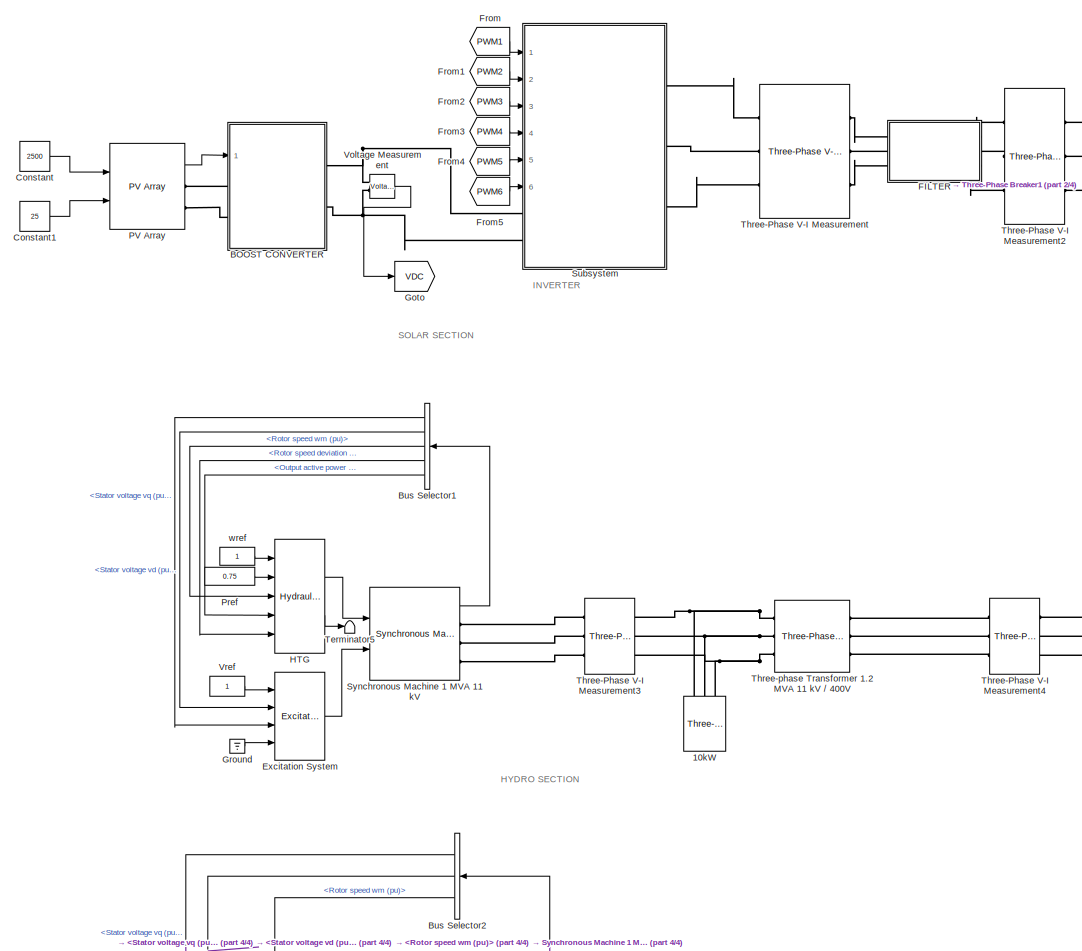
[diagram: root canvas - part 1/4, middle left region]
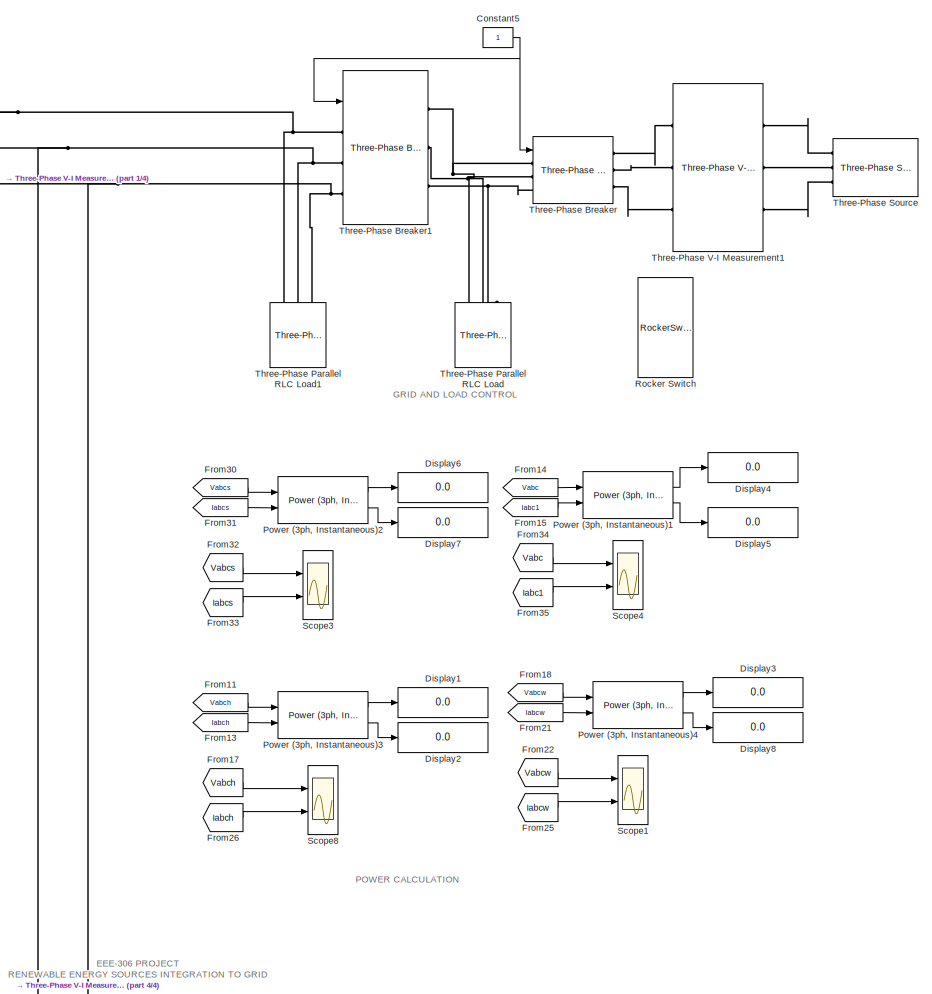
[diagram: root canvas - part 2/4, center side, full height]
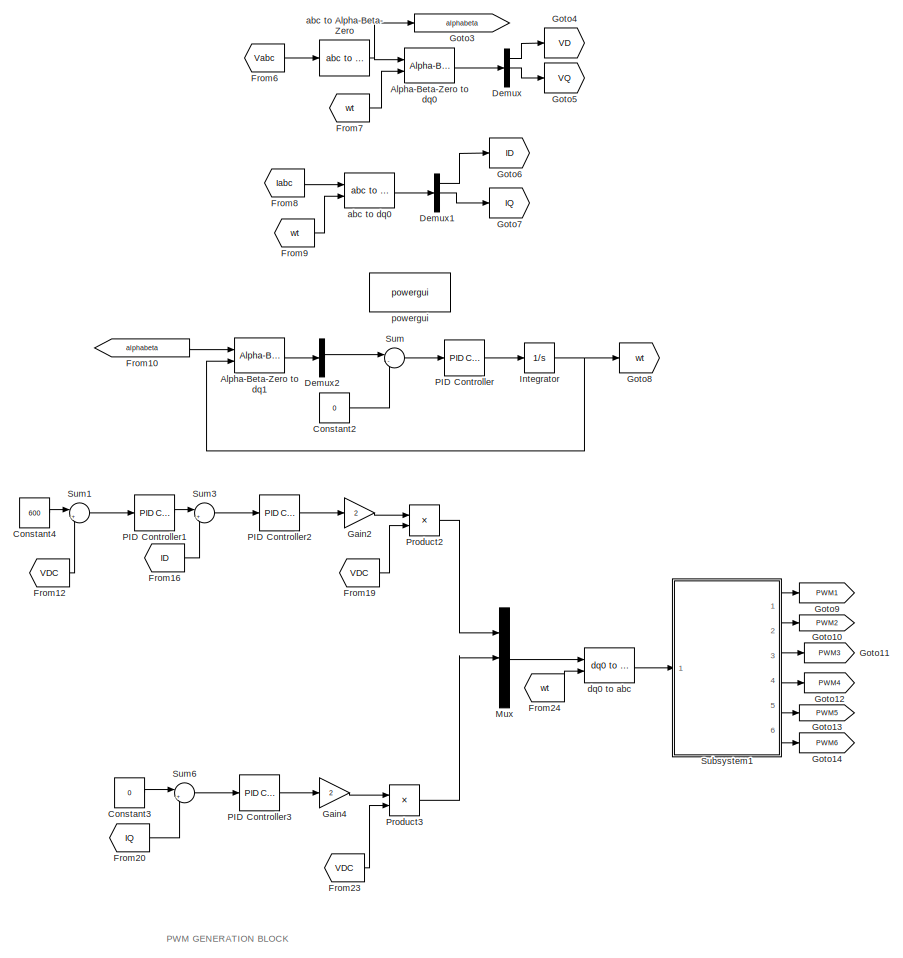
[diagram: root canvas - part 3/4, middle right region]
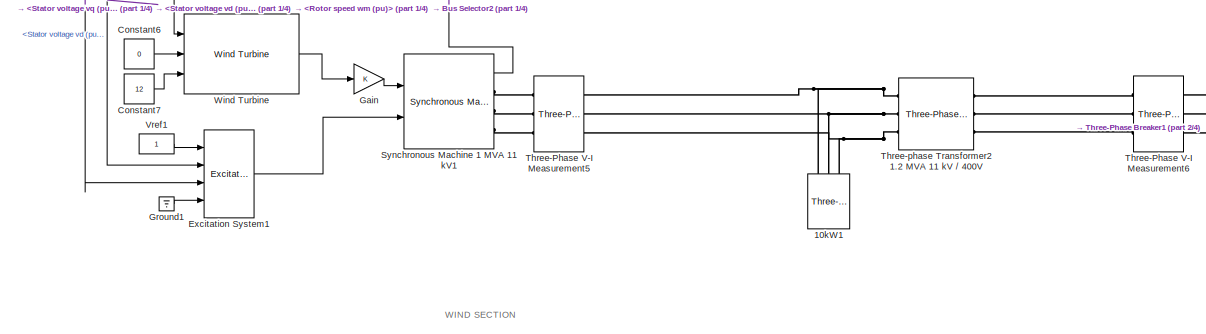
[diagram: root canvas - part 4/4, bottom left region]
MODEL slx_8a37fa41833d
KIND model
CONFIG AbsTol = auto
CONFIG EnableMultiTasking = off
CONFIG FixedStep = auto
CONFIG MaxStep = auto
CONFIG MinStep = auto
CONFIG RelTol = 1e-3
CONFIG SampleTimeConstraint = Unconstrained
CONFIG SolverName = ode23t
CONFIG StartTime = 0.0
CONFIG StopTime = 10.0
BLOCK [Reference] 10kW  REF=spsThreePhaseParallelRLCLoadLib/Three-Phase
Parallel RLC Load
  AttributesFormatString = \n
  NameLocation = left
  Ports = [0, 0, 0, 0, 0, 3]
  SourceBlock = spsThreePhaseParallelRLCLoadLib/Three-Phase\nParallel RLC Load
  SourceProductBaseCode = PS
  SourceType = Three-Phase Parallel RLC Load
BLOCK [Reference] 10kW1  REF=spsThreePhaseParallelRLCLoadLib/Three-Phase
Parallel RLC Load
  AttributesFormatString = \n
  NameLocation = left
  Ports = [0, 0, 0, 0, 0, 3]
  SourceBlock = spsThreePhaseParallelRLCLoadLib/Three-Phase\nParallel RLC Load
  SourceProductBaseCode = PS
  SourceType = Three-Phase Parallel RLC Load
BLOCK [Reference] Alpha-Beta-Zero to dq0  REF=spsAlphaBetaZerotodq0Lib/Alpha-Beta-Zero
to dq0
  Ports = [2, 1]
  SourceBlock = spsAlphaBetaZerotodq0Lib/Alpha-Beta-Zero\nto dq0
  SourceProductBaseCode = PS
  SourceType = Alpha-Beta-Zero to dq0 Transformation
BLOCK [Reference] Alpha-Beta-Zero to dq1  REF=spsAlphaBetaZerotodq0Lib/Alpha-Beta-Zero
to dq0
  Ports = [2, 1]
  SourceBlock = spsAlphaBetaZerotodq0Lib/Alpha-Beta-Zero\nto dq0
  SourceProductBaseCode = PS
  SourceType = Alpha-Beta-Zero to dq0 Transformation
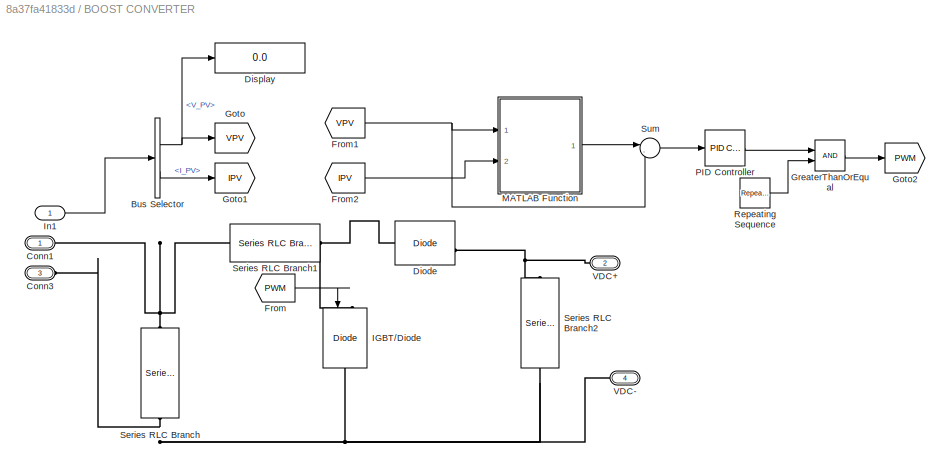
BLOCK [SubSystem] BOOST CONVERTER
  Ports = [1, 0, 0, 0, 0, 2, 2]
  RequestExecContextInheritance = off
BLOCK [BusSelector] BOOST CONVERTER/Bus Selector
  OutputSignals = V_PV,I_PV
  Ports = [1, 2]
BLOCK [PMIOPort] BOOST CONVERTER/Conn1
  Side = Left
BLOCK [PMIOPort] BOOST CONVERTER/Conn3
  Port = 3
  Side = Left
BLOCK [Reference] BOOST CONVERTER/Diode  REF=spsDiodeLib/Diode
  Ports = [0, 1, 0, 0, 0, 1, 1]
  SourceBlock = spsDiodeLib/Diode
  SourceProductBaseCode = PS
  SourceType = Diode
BLOCK [Display] BOOST CONVERTER/Display
  Decimation = 1
  Ports = [1]
BLOCK [From] BOOST CONVERTER/From
  GotoTag = PWM
BLOCK [From] BOOST CONVERTER/From1
  GotoTag = VPV
BLOCK [From] BOOST CONVERTER/From2
  GotoTag = IPV
BLOCK [Goto] BOOST CONVERTER/Goto
  GotoTag = VPV
BLOCK [Goto] BOOST CONVERTER/Goto1
  GotoTag = IPV
BLOCK [Goto] BOOST CONVERTER/Goto2
  GotoTag = PWM
BLOCK [RelationalOperator] BOOST CONVERTER/GreaterThanOrEqual
  InputSameDT = off
  OutDataTypeStr = boolean
  Ports = [2, 1]
  RndMeth = Simplest
BLOCK [Reference] BOOST CONVERTER/IGBT//Diode  REF=spsIGBTDiodeLib/IGBT//Diode
  NameLocation = left
  Ports = [1, 0, 0, 0, 0, 1, 1]
  SourceBlock = spsIGBTDiodeLib/IGBT//Diode
  SourceProductBaseCode = PS
  SourceType = IGBT/Diode
BLOCK [Inport] BOOST CONVERTER/In1
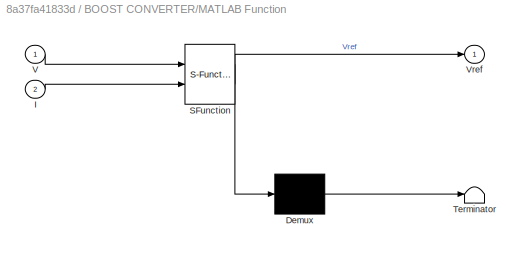
BLOCK [SubSystem] BOOST CONVERTER/MATLAB Function
  ErrorFcn = Stateflow.Translate.translate
  PermitHierarchicalResolution = ExplicitOnly
  Ports = [2, 1]
  RequestExecContextInheritance = off
  SFBlockType = MATLAB Function
  TreatAsAtomicUnit = on
BLOCK [Demux] BOOST CONVERTER/MATLAB Function/ Demux 
  Outputs = 1
  Ports = [1, 1]
BLOCK [S-Function] BOOST CONVERTER/MATLAB Function/ SFunction 
  EnableBusSupport = on
  FunctionName = sf_sfun
  PortCounts = [2 2]
  Ports = [2, 2]
  SFcnIsStateOwnerBlock = off
  SFunctionDeploymentMode = off
  Tag = Stateflow S-Function 2
BLOCK [Terminator] BOOST CONVERTER/MATLAB Function/ Terminator 
BLOCK [Inport] BOOST CONVERTER/MATLAB Function/I
  Port = 2
BLOCK [Inport] BOOST CONVERTER/MATLAB Function/V
BLOCK [Outport] BOOST CONVERTER/MATLAB Function/Vref
BLOCK [Reference] BOOST CONVERTER/PID Controller  REF=pid_lib/PID Controller
  Ports = [1, 1]
  SourceBlock = pid_lib/PID Controller
  SourceProductBaseCode = SL
  SourceType = PID 1dof
BLOCK [Reference] BOOST CONVERTER/Repeating Sequence  REF=simulink/Sources/Repeating
Sequence
  Ports = [0, 1]
  SourceBlock = simulink/Sources/Repeating\nSequence
  SourceProductBaseCode = SL
  SourceType = Repeating table
BLOCK [Reference] BOOST CONVERTER/Series RLC Branch  REF=spsSeriesRLCBranchLib/Series RLC Branch
  NameLocation = left
  Ports = [0, 0, 0, 0, 0, 1, 1]
  SourceBlock = spsSeriesRLCBranchLib/Series RLC Branch
  SourceProductBaseCode = PS
  SourceType = Series RLC Branch
BLOCK [Reference] BOOST CONVERTER/Series RLC Branch1  REF=spsSeriesRLCBranchLib/Series RLC Branch
  NameLocation = top
  Ports = [0, 0, 0, 0, 0, 1, 1]
  SourceBlock = spsSeriesRLCBranchLib/Series RLC Branch
  SourceProductBaseCode = PS
  SourceType = Series RLC Branch
BLOCK [Reference] BOOST CONVERTER/Series RLC Branch2  REF=spsSeriesRLCBranchLib/Series RLC Branch
  NameLocation = left
  Ports = [0, 0, 0, 0, 0, 1, 1]
  SourceBlock = spsSeriesRLCBranchLib/Series RLC Branch
  SourceProductBaseCode = PS
  SourceType = Series RLC Branch
BLOCK [Sum] BOOST CONVERTER/Sum
  Inputs = |-+
  Ports = [2, 1]
BLOCK [PMIOPort] BOOST CONVERTER/VDC+
  NameLocation = top
  Port = 2
  Side = Right
BLOCK [PMIOPort] BOOST CONVERTER/VDC-
  NameLocation = top
  Port = 4
  Side = Right
BLOCK [BusSelector] Bus Selector1
  NameLocation = top
  OutputSignals = dq0 components.Stator voltage  vq (pu),dq0 components.Stator voltage  vd (pu),Mechanical.Rotor speed  wm  (pu),Mechanical.Rotor speed deviation  dw (pu),Output active power   Peo (pu)
  Ports = [1, 5]
BLOCK [BusSelector] Bus Selector2
  NameLocation = top
  OutputSignals = dq0 components.Stator voltage  vq (pu),dq0 components.Stator voltage  vd (pu),Mechanical.Rotor speed  wm  (pu)
  Ports = [1, 3]
BLOCK [Constant] Constant
  Value = 2500
BLOCK [Constant] Constant1
  Value = 25
BLOCK [Constant] Constant2
  Value = 0
BLOCK [Constant] Constant3
  Value = 0
BLOCK [Constant] Constant4
  Value = 600
BLOCK [Constant] Constant5
BLOCK [Constant] Constant6
  Value = 0
BLOCK [Constant] Constant7
  Value = 12
BLOCK [Demux] Demux
  Outputs = 3
  Ports = [1, 3]
BLOCK [Demux] Demux1
  Outputs = 3
  Ports = [1, 3]
BLOCK [Demux] Demux2
  Outputs = 3
  Ports = [1, 3]
BLOCK [Display] Display1
  Decimation = 1
  Ports = [1]
BLOCK [Display] Display2
  Decimation = 1
  Ports = [1]
BLOCK [Display] Display3
  Decimation = 1
  Ports = [1]
BLOCK [Display] Display4
  Decimation = 1
  Ports = [1]
BLOCK [Display] Display5
  Decimation = 1
  Ports = [1]
BLOCK [Display] Display6
  Decimation = 1
  Ports = [1]
BLOCK [Display] Display7
  Decimation = 1
  Ports = [1]
BLOCK [Display] Display8
  Decimation = 1
  Ports = [1]
BLOCK [Reference] Excitation System  REF=spsExcitationSystemLib/Excitation System
  Ports = [4, 1]
  SourceBlock = spsExcitationSystemLib/Excitation System
  SourceProductBaseCode = PS
  SourceType = Excitation System
BLOCK [Reference] Excitation System1  REF=spsExcitationSystemLib/Excitation System
  Ports = [4, 1]
  SourceBlock = spsExcitationSystemLib/Excitation System
  SourceProductBaseCode = PS
  SourceType = Excitation System
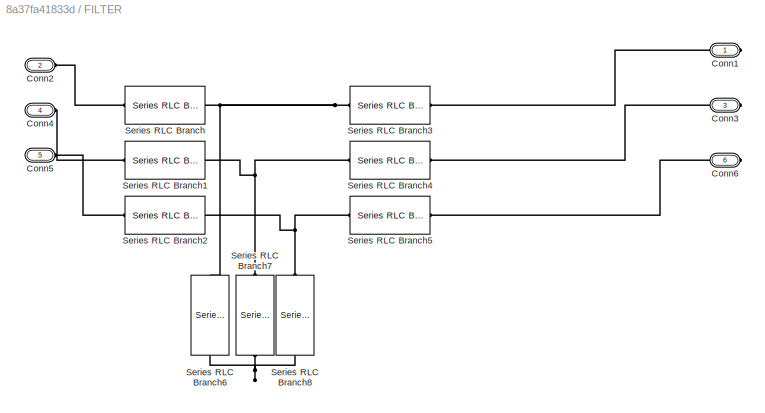
BLOCK [SubSystem] FILTER
  Ports = [0, 0, 0, 0, 0, 3, 3]
  RequestExecContextInheritance = off
BLOCK [PMIOPort] FILTER/Conn1
  Side = Right
BLOCK [PMIOPort] FILTER/Conn2
  Port = 2
  Side = Left
BLOCK [PMIOPort] FILTER/Conn3
  Port = 3
  Side = Right
BLOCK [PMIOPort] FILTER/Conn4
  Port = 4
  Side = Left
BLOCK [PMIOPort] FILTER/Conn5
  Port = 5
  Side = Left
BLOCK [PMIOPort] FILTER/Conn6
  Port = 6
  Side = Right
BLOCK [Reference] FILTER/Series RLC Branch  REF=spsSeriesRLCBranchLib/Series RLC Branch
  Ports = [0, 0, 0, 0, 0, 1, 1]
  SourceBlock = spsSeriesRLCBranchLib/Series RLC Branch
  SourceProductBaseCode = PS
  SourceType = Series RLC Branch
BLOCK [Reference] FILTER/Series RLC Branch1  REF=spsSeriesRLCBranchLib/Series RLC Branch
  Ports = [0, 0, 0, 0, 0, 1, 1]
  SourceBlock = spsSeriesRLCBranchLib/Series RLC Branch
  SourceProductBaseCode = PS
  SourceType = Series RLC Branch
BLOCK [Reference] FILTER/Series RLC Branch2  REF=spsSeriesRLCBranchLib/Series RLC Branch
  Ports = [0, 0, 0, 0, 0, 1, 1]
  SourceBlock = spsSeriesRLCBranchLib/Series RLC Branch
  SourceProductBaseCode = PS
  SourceType = Series RLC Branch
BLOCK [Reference] FILTER/Series RLC Branch3  REF=spsSeriesRLCBranchLib/Series RLC Branch
  Ports = [0, 0, 0, 0, 0, 1, 1]
  SourceBlock = spsSeriesRLCBranchLib/Series RLC Branch
  SourceProductBaseCode = PS
  SourceType = Series RLC Branch
BLOCK [Reference] FILTER/Series RLC Branch4  REF=spsSeriesRLCBranchLib/Series RLC Branch
  Ports = [0, 0, 0, 0, 0, 1, 1]
  SourceBlock = spsSeriesRLCBranchLib/Series RLC Branch
  SourceProductBaseCode = PS
  SourceType = Series RLC Branch
BLOCK [Reference] FILTER/Series RLC Branch5  REF=spsSeriesRLCBranchLib/Series RLC Branch
  Ports = [0, 0, 0, 0, 0, 1, 1]
  SourceBlock = spsSeriesRLCBranchLib/Series RLC Branch
  SourceProductBaseCode = PS
  SourceType = Series RLC Branch
BLOCK [Reference] FILTER/Series RLC Branch6  REF=spsSeriesRLCBranchLib/Series RLC Branch
  NameLocation = left
  Ports = [0, 0, 0, 0, 0, 1, 1]
  SourceBlock = spsSeriesRLCBranchLib/Series RLC Branch
  SourceProductBaseCode = PS
  SourceType = Series RLC Branch
BLOCK [Reference] FILTER/Series RLC Branch7  REF=spsSeriesRLCBranchLib/Series RLC Branch
  NameLocation = left
  Ports = [0, 0, 0, 0, 0, 1, 1]
  SourceBlock = spsSeriesRLCBranchLib/Series RLC Branch
  SourceProductBaseCode = PS
  SourceType = Series RLC Branch
BLOCK [Reference] FILTER/Series RLC Branch8  REF=spsSeriesRLCBranchLib/Series RLC Branch
  NameLocation = left
  Ports = [0, 0, 0, 0, 0, 1, 1]
  SourceBlock = spsSeriesRLCBranchLib/Series RLC Branch
  SourceProductBaseCode = PS
  SourceType = Series RLC Branch
BLOCK [From] From
  GotoTag = PWM1
BLOCK [From] From1
  GotoTag = PWM2
BLOCK [From] From10
  GotoTag = alphabeta
BLOCK [From] From11
  GotoTag = Vabch
  TagVisibility = global
BLOCK [From] From12
  GotoTag = VDC
  IconDisplay = Signal name
BLOCK [From] From13
  GotoTag = Iabch
  TagVisibility = global
BLOCK [From] From14
  GotoTag = Vabc
  TagVisibility = global
BLOCK [From] From15
  GotoTag = Iabc1
  TagVisibility = global
BLOCK [From] From16
  GotoTag = ID
BLOCK [From] From17
  GotoTag = Vabch
  TagVisibility = global
BLOCK [From] From18
  GotoTag = Vabcw
  TagVisibility = global
BLOCK [From] From19
  GotoTag = VDC
  IconDisplay = Signal name
BLOCK [From] From2
  GotoTag = PWM3
BLOCK [From] From20
  GotoTag = IQ
BLOCK [From] From21
  GotoTag = Iabcw
  TagVisibility = global
BLOCK [From] From22
  GotoTag = Vabcw
  TagVisibility = global
BLOCK [From] From23
  GotoTag = VDC
  IconDisplay = Signal name
BLOCK [From] From24
  GotoTag = wt
BLOCK [From] From25
  GotoTag = Iabcw
  TagVisibility = global
BLOCK [From] From26
  GotoTag = Iabch
  TagVisibility = global
BLOCK [From] From3
  GotoTag = PWM4
BLOCK [From] From30
  GotoTag = Vabcs
  TagVisibility = global
BLOCK [From] From31
  GotoTag = Iabcs
  TagVisibility = global
BLOCK [From] From32
  GotoTag = Vabcs
  TagVisibility = global
BLOCK [From] From33
  GotoTag = Iabcs
  TagVisibility = global
BLOCK [From] From34
  GotoTag = Vabc
  TagVisibility = global
BLOCK [From] From35
  GotoTag = Iabc1
  TagVisibility = global
BLOCK [From] From4
  GotoTag = PWM5
BLOCK [From] From5
  GotoTag = PWM6
BLOCK [From] From6
  GotoTag = Vabc
  TagVisibility = global
BLOCK [From] From7
  GotoTag = wt
BLOCK [From] From8
  GotoTag = Iabc
  TagVisibility = global
BLOCK [From] From9
  GotoTag = wt
BLOCK [Gain] Gain
BLOCK [Gain] Gain2
  Gain = 2
BLOCK [Gain] Gain4
  Gain = 2
BLOCK [Goto] Goto
  GotoTag = VDC
BLOCK [Goto] Goto10
  GotoTag = PWM2
BLOCK [Goto] Goto11
  GotoTag = PWM3
BLOCK [Goto] Goto12
  GotoTag = PWM4
BLOCK [Goto] Goto13
  GotoTag = PWM5
BLOCK [Goto] Goto14
  GotoTag = PWM6
BLOCK [Goto] Goto3
  GotoTag = alphabeta
BLOCK [Goto] Goto4
  GotoTag = VD
BLOCK [Goto] Goto5
  GotoTag = VQ
BLOCK [Goto] Goto6
  GotoTag = ID
BLOCK [Goto] Goto7
  GotoTag = IQ
BLOCK [Goto] Goto8
  GotoTag = wt
BLOCK [Goto] Goto9
  GotoTag = PWM1
BLOCK [Ground] Ground
BLOCK [Ground] Ground1
BLOCK [Reference] HTG  REF=spsHydraulicTurbineandGovernorLib/Hydraulic Turbine
and Governor
  NameLocation = top
  Ports = [5, 2]
  SourceBlock = spsHydraulicTurbineandGovernorLib/Hydraulic Turbine\nand Governor
  SourceProductBaseCode = PS
  SourceType = Hydraulic Turbine and Governor
BLOCK [Integrator] Integrator
  Ports = [1, 1]
BLOCK [Mux] Mux
  DisplayOption = bar
  Inputs = 3
  Ports = [3, 1]
BLOCK [Reference] PID Controller  REF=pid_lib/PID Controller
  Ports = [1, 1]
  SourceBlock = pid_lib/PID Controller
  SourceProductBaseCode = SL
  SourceType = PID 1dof
BLOCK [Reference] PID Controller1  REF=pid_lib/PID Controller
  Ports = [1, 1]
  SourceBlock = pid_lib/PID Controller
  SourceProductBaseCode = SL
  SourceType = PID 1dof
BLOCK [Reference] PID Controller2  REF=pid_lib/PID Controller
  Ports = [1, 1]
  SourceBlock = pid_lib/PID Controller
  SourceProductBaseCode = SL
  SourceType = PID 1dof
BLOCK [Reference] PID Controller3  REF=pid_lib/PID Controller
  Ports = [1, 1]
  SourceBlock = pid_lib/PID Controller
  SourceProductBaseCode = SL
  SourceType = PID 1dof
BLOCK [Reference] PV Array  REF=spsPVArrayLib/PV Array
  Ports = [2, 1, 0, 0, 0, 0, 2]
  SourceBlock = spsPVArrayLib/PV Array
  SourceProductBaseCode = PS
  SourceType = PV array
BLOCK [Reference] Power (3ph, Instantaneous)1  REF=spsPower3phInstantaneousLib/Power
(3ph, Instantaneous)
  Ports = [2, 2]
  SourceBlock = spsPower3phInstantaneousLib/Power\n(3ph, Instantaneous)
  SourceProductBaseCode = PS
  SourceType = Power (3ph, Instantaneous)
BLOCK [Reference] Power (3ph, Instantaneous)2  REF=spsPower3phInstantaneousLib/Power
(3ph, Instantaneous)
  Ports = [2, 2]
  SourceBlock = spsPower3phInstantaneousLib/Power\n(3ph, Instantaneous)
  SourceProductBaseCode = PS
  SourceType = Power (3ph, Instantaneous)
BLOCK [Reference] Power (3ph, Instantaneous)3  REF=spsPower3phInstantaneousLib/Power
(3ph, Instantaneous)
  Ports = [2, 2]
  SourceBlock = spsPower3phInstantaneousLib/Power\n(3ph, Instantaneous)
  SourceProductBaseCode = PS
  SourceType = Power (3ph, Instantaneous)
BLOCK [Reference] Power (3ph, Instantaneous)4  REF=spsPower3phInstantaneousLib/Power
(3ph, Instantaneous)
  Ports = [2, 2]
  SourceBlock = spsPower3phInstantaneousLib/Power\n(3ph, Instantaneous)
  SourceProductBaseCode = PS
  SourceType = Power (3ph, Instantaneous)
BLOCK [Constant] Pref
  NameLocation = top
  Value = 0.75
BLOCK [Product] Product2
  Inputs = */
  Ports = [2, 1]
BLOCK [Product] Product3
  Inputs = */
  Ports = [2, 1]
BLOCK [RockerSwitchBlock] Rocker Switch
BLOCK [Scope] Scope1
  Floating = off
  NumInputPorts = 2
  Ports = [2]
  ScopeSpecificationString = Simulink.scopes.TimeScopeBlockCfg('CurrentConfiguration', extmgr.ConfigurationSet(extmgr.Configuration('Core','General UI',true),extmgr.Configuration('Core','Source UI',true),extmgr.Configuration('Sources','WiredSimulink',true,'DataLoggingVariableName','ScopeData1'),extmgr.Configuration('Visuals','Time Domain',true,'SerializedDisplays',{struct('MinYLimReal','-386.26498','MaxYLimReal','386.05177','...<+2064ch>
BLOCK [Scope] Scope3
  Floating = off
  NumInputPorts = 2
  Ports = [2]
  ScopeSpecificationString = Simulink.scopes.TimeScopeBlockCfg('CurrentConfiguration', extmgr.ConfigurationSet(extmgr.Configuration('Core','General UI',true),extmgr.Configuration('Core','Source UI',true),extmgr.Configuration('Sources','WiredSimulink',true,'DataLoggingVariableName','ScopeData3'),extmgr.Configuration('Visuals','Time Domain',true,'SerializedDisplays',{struct('MinYLimReal','-386.26498','MaxYLimReal','386.05177','...<+1999ch>
BLOCK [Scope] Scope4
  Floating = off
  NumInputPorts = 2
  Ports = [2]
  ScopeSpecificationString = Simulink.scopes.TimeScopeBlockCfg('CurrentConfiguration', extmgr.ConfigurationSet(extmgr.Configuration('Core','General UI',true),extmgr.Configuration('Core','Source UI',true),extmgr.Configuration('Sources','WiredSimulink',true),extmgr.Configuration('Visuals','Time Domain',true,'SerializedDisplays',{struct('MinYLimReal','-408.12635','MaxYLimReal','408.02755','YLabelReal','','MinYLimMag',' 0.00000',...<+2057ch>
BLOCK [Scope] Scope8
  Floating = off
  NumInputPorts = 2
  Ports = [2]
  ScopeSpecificationString = Simulink.scopes.TimeScopeBlockCfg('CurrentConfiguration', extmgr.ConfigurationSet(extmgr.Configuration('Core','General UI',true),extmgr.Configuration('Core','Source UI',true),extmgr.Configuration('Sources','WiredSimulink',true,'DataLoggingVariableName','ScopeData2'),extmgr.Configuration('Visuals','Time Domain',true,'SerializedDisplays',{struct('MinYLimReal','-386.26498','MaxYLimReal','386.05177','...<+2024ch>
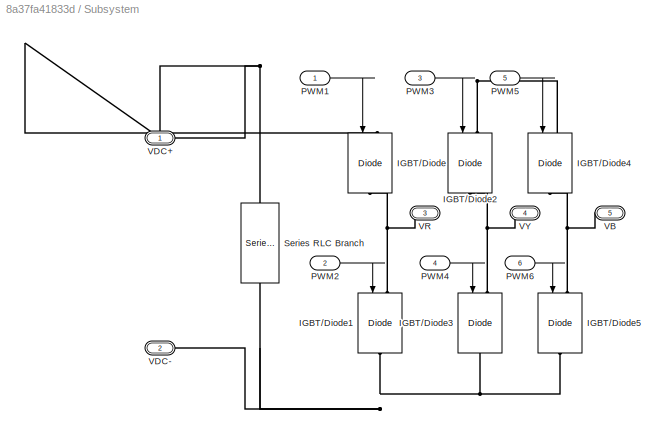
BLOCK [SubSystem] Subsystem
  Ports = [6, 0, 0, 0, 0, 2, 3]
  RequestExecContextInheritance = off
BLOCK [PMIOPort] Subsystem/ VB
  NameLocation = top
  Port = 5
  Side = Right
BLOCK [PMIOPort] Subsystem/ VDC+
  Side = Left
BLOCK [PMIOPort] Subsystem/ VDC-
  Port = 2
  Side = Left
BLOCK [PMIOPort] Subsystem/ VR
  NameLocation = top
  Port = 3
  Side = Right
BLOCK [PMIOPort] Subsystem/ VY
  NameLocation = top
  Port = 4
  Side = Right
BLOCK [Reference] Subsystem/IGBT//Diode  REF=spsIGBTDiodeLib/IGBT//Diode
  NameLocation = left
  Ports = [1, 0, 0, 0, 0, 1, 1]
  SourceBlock = spsIGBTDiodeLib/IGBT//Diode
  SourceProductBaseCode = PS
  SourceType = IGBT/Diode
BLOCK [Reference] Subsystem/IGBT//Diode1  REF=spsIGBTDiodeLib/IGBT//Diode
  NameLocation = left
  Ports = [1, 0, 0, 0, 0, 1, 1]
  SourceBlock = spsIGBTDiodeLib/IGBT//Diode
  SourceProductBaseCode = PS
  SourceType = IGBT/Diode
BLOCK [Reference] Subsystem/IGBT//Diode2  REF=spsIGBTDiodeLib/IGBT//Diode
  NameLocation = left
  Ports = [1, 0, 0, 0, 0, 1, 1]
  SourceBlock = spsIGBTDiodeLib/IGBT//Diode
  SourceProductBaseCode = PS
  SourceType = IGBT/Diode
BLOCK [Reference] Subsystem/IGBT//Diode3  REF=spsIGBTDiodeLib/IGBT//Diode
  NameLocation = left
  Ports = [1, 0, 0, 0, 0, 1, 1]
  SourceBlock = spsIGBTDiodeLib/IGBT//Diode
  SourceProductBaseCode = PS
  SourceType = IGBT/Diode
BLOCK [Reference] Subsystem/IGBT//Diode4  REF=spsIGBTDiodeLib/IGBT//Diode
  NameLocation = left
  Ports = [1, 0, 0, 0, 0, 1, 1]
  SourceBlock = spsIGBTDiodeLib/IGBT//Diode
  SourceProductBaseCode = PS
  SourceType = IGBT/Diode
BLOCK [Reference] Subsystem/IGBT//Diode5  REF=spsIGBTDiodeLib/IGBT//Diode
  NameLocation = left
  Ports = [1, 0, 0, 0, 0, 1, 1]
  SourceBlock = spsIGBTDiodeLib/IGBT//Diode
  SourceProductBaseCode = PS
  SourceType = IGBT/Diode
BLOCK [Inport] Subsystem/PWM1
BLOCK [Inport] Subsystem/PWM2
  Port = 2
BLOCK [Inport] Subsystem/PWM3
  Port = 3
BLOCK [Inport] Subsystem/PWM4
  Port = 4
BLOCK [Inport] Subsystem/PWM5
  Port = 5
BLOCK [Inport] Subsystem/PWM6
  Port = 6
BLOCK [Reference] Subsystem/Series RLC Branch  REF=spsSeriesRLCBranchLib/Series RLC Branch
  NameLocation = left
  Ports = [0, 0, 0, 0, 0, 1, 1]
  SourceBlock = spsSeriesRLCBranchLib/Series RLC Branch
  SourceProductBaseCode = PS
  SourceType = Series RLC Branch
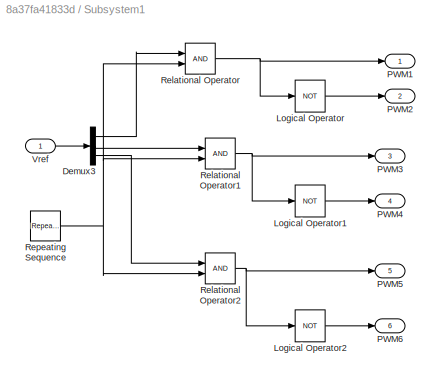
BLOCK [SubSystem] Subsystem1
  Ports = [1, 6]
  RequestExecContextInheritance = off
BLOCK [Demux] Subsystem1/Demux3
  Outputs = 3
  Ports = [1, 3]
BLOCK [Logic] Subsystem1/Logical Operator
  AllPortsSameDT = off
  Operator = NOT
  OutDataTypeStr = boolean
  Ports = [1, 1]
BLOCK [Logic] Subsystem1/Logical Operator1
  AllPortsSameDT = off
  Operator = NOT
  OutDataTypeStr = boolean
  Ports = [1, 1]
BLOCK [Logic] Subsystem1/Logical Operator2
  AllPortsSameDT = off
  Operator = NOT
  OutDataTypeStr = boolean
  Ports = [1, 1]
BLOCK [Outport] Subsystem1/PWM1
BLOCK [Outport] Subsystem1/PWM2
  Port = 2
BLOCK [Outport] Subsystem1/PWM3
  Port = 3
BLOCK [Outport] Subsystem1/PWM4
  Port = 4
BLOCK [Outport] Subsystem1/PWM5
  Port = 5
BLOCK [Outport] Subsystem1/PWM6
  Port = 6
BLOCK [RelationalOperator] Subsystem1/Relational Operator
  InputSameDT = off
  OutDataTypeStr = boolean
  Ports = [2, 1]
  RndMeth = Simplest
BLOCK [RelationalOperator] Subsystem1/Relational Operator1
  InputSameDT = off
  OutDataTypeStr = boolean
  Ports = [2, 1]
  RndMeth = Simplest
BLOCK [RelationalOperator] Subsystem1/Relational Operator2
  InputSameDT = off
  OutDataTypeStr = boolean
  Ports = [2, 1]
  RndMeth = Simplest
BLOCK [Reference] Subsystem1/Repeating Sequence  REF=simulink/Sources/Repeating
Sequence
  Ports = [0, 1]
  SourceBlock = simulink/Sources/Repeating\nSequence
  SourceProductBaseCode = SL
  SourceType = Repeating table
BLOCK [Inport] Subsystem1/Vref
BLOCK [Sum] Sum
  Inputs = |-+
  Ports = [2, 1]
BLOCK [Sum] Sum1
  Inputs = |+-
  Ports = [2, 1]
BLOCK [Sum] Sum3
  Inputs = |+-
  Ports = [2, 1]
BLOCK [Sum] Sum6
  Inputs = |+-
  Ports = [2, 1]
BLOCK [Reference] Synchronous Machine 1 MVA 11 kV  REF=spsSynchronousMachinepuStandardLib/Synchronous Machine
pu Standard
  AttributesFormatString = \n\n
  Ports = [2, 1, 0, 0, 0, 0, 3]
  SourceBlock = spsSynchronousMachinepuStandardLib/Synchronous Machine\npu Standard
  SourceProductBaseCode = PS
  SourceType = Synchronous Machine
BLOCK [Reference] Synchronous Machine 1 MVA 11 kV1  REF=spsSynchronousMachinepuStandardLib/Synchronous Machine
pu Standard
  AttributesFormatString = \n\n
  Ports = [2, 1, 0, 0, 0, 0, 3]
  SourceBlock = spsSynchronousMachinepuStandardLib/Synchronous Machine\npu Standard
  SourceProductBaseCode = PS
  SourceType = Synchronous Machine
BLOCK [Terminator] Terminator5
  NameLocation = top
BLOCK [Reference] Three-Phase Breaker  REF=spsThreePhaseBreakerLib/Three-Phase Breaker
  Ports = [1, 0, 0, 0, 0, 3, 3]
  SourceBlock = spsThreePhaseBreakerLib/Three-Phase Breaker
  SourceProductBaseCode = PS
  SourceType = Three-Phase Breaker
BLOCK [Reference] Three-Phase Breaker1  REF=spsThreePhaseBreakerLib/Three-Phase Breaker
  Ports = [1, 0, 0, 0, 0, 3, 3]
  SourceBlock = spsThreePhaseBreakerLib/Three-Phase Breaker
  SourceProductBaseCode = PS
  SourceType = Three-Phase Breaker
BLOCK [Reference] Three-Phase Parallel RLC Load  REF=spsThreePhaseParallelRLCLoadLib/Three-Phase
Parallel RLC Load
  AttributesFormatString = \n
  Ports = [0, 0, 0, 0, 0, 3]
  SourceBlock = spsThreePhaseParallelRLCLoadLib/Three-Phase\nParallel RLC Load
  SourceProductBaseCode = PS
  SourceType = Three-Phase Parallel RLC Load
BLOCK [Reference] Three-Phase Parallel RLC Load1  REF=spsThreePhaseParallelRLCLoadLib/Three-Phase
Parallel RLC Load
  AttributesFormatString = \n
  Ports = [0, 0, 0, 0, 0, 3]
  SourceBlock = spsThreePhaseParallelRLCLoadLib/Three-Phase\nParallel RLC Load
  SourceProductBaseCode = PS
  SourceType = Three-Phase Parallel RLC Load
BLOCK [Reference] Three-Phase Source  REF=spsThreePhaseSourceLib/Three-Phase Source
  Ports = [0, 0, 0, 0, 0, 0, 3]
  SourceBlock = spsThreePhaseSourceLib/Three-Phase Source
  SourceProductBaseCode = PS
  SourceType = Three-Phase Source
BLOCK [Reference] Three-Phase V-I Measurement  REF=spsThreePhaseVIMeasurementLib/Three-Phase
V-I Measurement
  Ports = [0, 0, 0, 0, 0, 3, 3]
  SourceBlock = spsThreePhaseVIMeasurementLib/Three-Phase\nV-I Measurement
  SourceProductBaseCode = PS
  SourceType = Three-Phase VI Measurement
BLOCK [Reference] Three-Phase V-I Measurement1  REF=spsThreePhaseVIMeasurementLib/Three-Phase
V-I Measurement
  Ports = [0, 0, 0, 0, 0, 3, 3]
  SourceBlock = spsThreePhaseVIMeasurementLib/Three-Phase\nV-I Measurement
  SourceProductBaseCode = PS
  SourceType = Three-Phase VI Measurement
BLOCK [Reference] Three-Phase V-I Measurement2  REF=spsThreePhaseVIMeasurementLib/Three-Phase
V-I Measurement
  Ports = [0, 0, 0, 0, 0, 3, 3]
  SourceBlock = spsThreePhaseVIMeasurementLib/Three-Phase\nV-I Measurement
  SourceProductBaseCode = PS
  SourceType = Three-Phase VI Measurement
BLOCK [Reference] Three-Phase V-I Measurement3  REF=spsThreePhaseVIMeasurementLib/Three-Phase
V-I Measurement
  Ports = [0, 0, 0, 0, 0, 3, 3]
  SourceBlock = spsThreePhaseVIMeasurementLib/Three-Phase\nV-I Measurement
  SourceProductBaseCode = PS
  SourceType = Three-Phase VI Measurement
BLOCK [Reference] Three-Phase V-I Measurement4  REF=spsThreePhaseVIMeasurementLib/Three-Phase
V-I Measurement
  Ports = [0, 0, 0, 0, 0, 3, 3]
  SourceBlock = spsThreePhaseVIMeasurementLib/Three-Phase\nV-I Measurement
  SourceProductBaseCode = PS
  SourceType = Three-Phase VI Measurement
BLOCK [Reference] Three-Phase V-I Measurement5  REF=spsThreePhaseVIMeasurementLib/Three-Phase
V-I Measurement
  Ports = [0, 0, 0, 0, 0, 3, 3]
  SourceBlock = spsThreePhaseVIMeasurementLib/Three-Phase\nV-I Measurement
  SourceProductBaseCode = PS
  SourceType = Three-Phase VI Measurement
BLOCK [Reference] Three-Phase V-I Measurement6  REF=spsThreePhaseVIMeasurementLib/Three-Phase
V-I Measurement
  Ports = [0, 0, 0, 0, 0, 3, 3]
  SourceBlock = spsThreePhaseVIMeasurementLib/Three-Phase\nV-I Measurement
  SourceProductBaseCode = PS
  SourceType = Three-Phase VI Measurement
BLOCK [Reference] Three-phase Transformer 1.2 MVA 11 kV // 400V  REF=spsThreePhaseTransformerTwoWindingsLib/Three-Phase
Transformer
(Two Windings)
  AttributesFormatString = \n
  Ports = [0, 0, 0, 0, 0, 3, 3]
  SourceBlock = spsThreePhaseTransformerTwoWindingsLib/Three-Phase\nTransformer\n(Two Windings)
  SourceProductBaseCode = PS
  SourceType = Three-Phase Transformer (Two Windings)
BLOCK [Reference] Three-phase Transformer2 1.2 MVA 11 kV // 400V  REF=spsThreePhaseTransformerTwoWindingsLib/Three-Phase
Transformer
(Two Windings)
  AttributesFormatString = \n
  Ports = [0, 0, 0, 0, 0, 3, 3]
  SourceBlock = spsThreePhaseTransformerTwoWindingsLib/Three-Phase\nTransformer\n(Two Windings)
  SourceProductBaseCode = PS
  SourceType = Three-Phase Transformer (Two Windings)
BLOCK [Reference] Voltage Measurement  REF=spsVoltageMeasurementLib/Voltage Measurement
  Ports = [0, 1, 0, 0, 0, 2]
  SourceBlock = spsVoltageMeasurementLib/Voltage Measurement
  SourceProductBaseCode = PS
  SourceType = Voltage Measurement
  UserDataPersistent = on
BLOCK [Constant] Vref
  NameLocation = top
BLOCK [Constant] Vref1
  NameLocation = top
BLOCK [Reference] Wind Turbine  REF=spsWindTurbineLib/Wind Turbine
  Ports = [3, 1]
  SourceBlock = spsWindTurbineLib/Wind Turbine
  SourceProductBaseCode = PS
  SourceType = Wind Turbine
BLOCK [Reference] abc to Alpha-Beta-Zero  REF=spsabctoAlphaBetaZeroLib/abc to
Alpha-Beta-Zero
  Ports = [1, 1]
  SourceBlock = spsabctoAlphaBetaZeroLib/abc to\nAlpha-Beta-Zero
  SourceProductBaseCode = PS
  SourceType = abc to Alpha-Beta-Zero Transformation
BLOCK [Reference] abc to dq0  REF=spsabctodq0Lib/abc to dq0
  Ports = [2, 1]
  SourceBlock = spsabctodq0Lib/abc to dq0
  SourceProductBaseCode = PS
  SourceType = abc to dq0 Transformation
BLOCK [Reference] dq0 to abc  REF=spsdq0toabcLib/dq0 to abc
  Ports = [2, 1]
  SourceBlock = spsdq0toabcLib/dq0 to abc
  SourceProductBaseCode = PS
  SourceType = dq0 to abc Transformation
BLOCK [Reference] powergui  REF=spspowerguiLib/powergui
  Ports = []
  Priority = 1
  SourceBlock = spspowerguiLib/powergui
  SourceProductBaseCode = PS
  SourceType = PSB option menu block
BLOCK [Constant] wref
  NameLocation = top
ANNOTATION (root): GRID AND LOAD CONTROL
ANNOTATION (root): HYDRO SECTION
ANNOTATION (root): POWER CALCULATION
ANNOTATION (root): PWM GENERATION BLOCK
ANNOTATION (root): SOLAR SECTION
ANNOTATION (root): WIND SECTION
ANNOTATION (root): EEE-306 PROJECT RENEWABLE ENERGY SOURCES INTEGRATION TO GRID
ANNOTATION (root): INVERTER
LINE Alpha-Beta-Zero to dq0:1 -> Demux:1
LINE Alpha-Beta-Zero to dq1:1 -> Demux2:1
NET BOOST CONVERTER/Bus Selector:1 -> BOOST CONVERTER/Display:1, BOOST CONVERTER/Goto:1
LINE BOOST CONVERTER/Bus Selector:2 -> BOOST CONVERTER/Goto1:1
NET BOOST CONVERTER/From1:1 -> BOOST CONVERTER/MATLAB Function:1, BOOST CONVERTER/Sum:2
LINE BOOST CONVERTER/From2:1 -> BOOST CONVERTER/MATLAB Function:2
LINE BOOST CONVERTER/From:1 -> BOOST CONVERTER/IGBT//Diode:1
LINE BOOST CONVERTER/GreaterThanOrEqual:1 -> BOOST CONVERTER/Goto2:1
LINE BOOST CONVERTER/In1:1 -> BOOST CONVERTER/Bus Selector:1
LINE BOOST CONVERTER/MATLAB Function:1 -> BOOST CONVERTER/Sum:1
LINE BOOST CONVERTER/PID Controller:1 -> BOOST CONVERTER/GreaterThanOrEqual:1
LINE BOOST CONVERTER/Repeating Sequence:1 -> BOOST CONVERTER/GreaterThanOrEqual:2
LINE BOOST CONVERTER/Sum:1 -> BOOST CONVERTER/PID Controller:1
LINE Bus Selector1:1 -> Excitation System:3
LINE Bus Selector1:2 -> Excitation System:2
LINE Bus Selector1:3 -> HTG:3
LINE Bus Selector1:4 -> HTG:5
LINE Bus Selector1:5 -> HTG:4
LINE Bus Selector2:1 -> Excitation System1:3
LINE Bus Selector2:2 -> Excitation System1:2
LINE Bus Selector2:3 -> Wind Turbine:1
LINE Constant1:1 -> PV Array:2
LINE Constant2:1 -> Sum:2
LINE Constant3:1 -> Sum6:1
LINE Constant4:1 -> Sum1:1
NET Constant5:1 -> Three-Phase Breaker1:1, Three-Phase Breaker:1
LINE Constant6:1 -> Wind Turbine:2
LINE Constant7:1 -> Wind Turbine:3
LINE Constant:1 -> PV Array:1
LINE Demux1:1 -> Goto6:1
LINE Demux1:2 -> Goto7:1
LINE Demux2:2 -> Sum:1
LINE Demux:1 -> Goto4:1
LINE Demux:2 -> Goto5:1
LINE Excitation System1:1 -> Synchronous Machine 1 MVA 11 kV1:2
LINE Excitation System:1 -> Synchronous Machine 1 MVA 11 kV:2
LINE From10:1 -> Alpha-Beta-Zero to dq1:1
LINE From11:1 -> Power (3ph, Instantaneous)3:1
LINE From12:1 -> Sum1:2
LINE From13:1 -> Power (3ph, Instantaneous)3:2
LINE From14:1 -> Power (3ph, Instantaneous)1:1
LINE From15:1 -> Power (3ph, Instantaneous)1:2
LINE From16:1 -> Sum3:2
LINE From17:1 -> Scope8:1
LINE From18:1 -> Power (3ph, Instantaneous)4:1
LINE From19:1 -> Product2:2
LINE From1:1 -> Subsystem:2
LINE From20:1 -> Sum6:2
LINE From21:1 -> Power (3ph, Instantaneous)4:2
LINE From22:1 -> Scope1:1
LINE From23:1 -> Product3:2
LINE From24:1 -> dq0 to abc:2
LINE From25:1 -> Scope1:2
LINE From26:1 -> Scope8:2
LINE From2:1 -> Subsystem:3
LINE From30:1 -> Power (3ph, Instantaneous)2:1
LINE From31:1 -> Power (3ph, Instantaneous)2:2
LINE From32:1 -> Scope3:1
LINE From33:1 -> Scope3:2
LINE From34:1 -> Scope4:1
LINE From35:1 -> Scope4:2
LINE From3:1 -> Subsystem:4
LINE From4:1 -> Subsystem:5
LINE From5:1 -> Subsystem:6
LINE From6:1 -> abc to Alpha-Beta-Zero:1
LINE From7:1 -> Alpha-Beta-Zero to dq0:2
LINE From8:1 -> abc to dq0:1
LINE From9:1 -> abc to dq0:2
LINE From:1 -> Subsystem:1
LINE Gain2:1 -> Product2:1
LINE Gain4:1 -> Product3:1
LINE Gain:1 -> Synchronous Machine 1 MVA 11 kV1:1
LINE Ground1:1 -> Excitation System1:4
LINE Ground:1 -> Excitation System:4
LINE HTG:1 -> Synchronous Machine 1 MVA 11 kV:1
LINE HTG:2 -> Terminator5:1
NET Integrator:1 -> Alpha-Beta-Zero to dq1:2, Goto8:1
LINE Mux:1 -> dq0 to abc:1
LINE PID Controller1:1 -> Sum3:1
LINE PID Controller2:1 -> Gain2:1
LINE PID Controller3:1 -> Gain4:1
LINE PID Controller:1 -> Integrator:1
LINE PV Array:1 -> BOOST CONVERTER:1
LINE Power (3ph, Instantaneous)1:1 -> Display4:1
LINE Power (3ph, Instantaneous)1:2 -> Display5:1
LINE Power (3ph, Instantaneous)2:1 -> Display6:1
LINE Power (3ph, Instantaneous)2:2 -> Display7:1
LINE Power (3ph, Instantaneous)3:1 -> Display1:1
LINE Power (3ph, Instantaneous)3:2 -> Display2:1
LINE Power (3ph, Instantaneous)4:1 -> Display3:1
LINE Power (3ph, Instantaneous)4:2 -> Display8:1
LINE Pref:1 -> HTG:2
LINE Product2:1 -> Mux:1
LINE Product3:1 -> Mux:2
LINE Subsystem/PWM1:1 -> Subsystem/IGBT//Diode:1
LINE Subsystem/PWM2:1 -> Subsystem/IGBT//Diode1:1
LINE Subsystem/PWM3:1 -> Subsystem/IGBT//Diode2:1
LINE Subsystem/PWM4:1 -> Subsystem/IGBT//Diode3:1
LINE Subsystem/PWM5:1 -> Subsystem/IGBT//Diode4:1
LINE Subsystem/PWM6:1 -> Subsystem/IGBT//Diode5:1
LINE Subsystem1/Demux3:1 -> Subsystem1/Relational Operator:1
LINE Subsystem1/Demux3:2 -> Subsystem1/Relational Operator1:1
LINE Subsystem1/Demux3:3 -> Subsystem1/Relational Operator2:1
LINE Subsystem1/Logical Operator1:1 -> Subsystem1/PWM4:1
LINE Subsystem1/Logical Operator2:1 -> Subsystem1/PWM6:1
LINE Subsystem1/Logical Operator:1 -> Subsystem1/PWM2:1
NET Subsystem1/Relational Operator1:1 -> Subsystem1/Logical Operator1:1, Subsystem1/PWM3:1
NET Subsystem1/Relational Operator2:1 -> Subsystem1/Logical Operator2:1, Subsystem1/PWM5:1
NET Subsystem1/Relational Operator:1 -> Subsystem1/Logical Operator:1, Subsystem1/PWM1:1
NET Subsystem1/Repeating Sequence:1 -> Subsystem1/Relational Operator1:2, Subsystem1/Relational Operator2:2, Subsystem1/Relational Operator:2
LINE Subsystem1/Vref:1 -> Subsystem1/Demux3:1
LINE Subsystem1:1 -> Goto9:1
LINE Subsystem1:2 -> Goto10:1
LINE Subsystem1:3 -> Goto11:1
LINE Subsystem1:4 -> Goto12:1
LINE Subsystem1:5 -> Goto13:1
LINE Subsystem1:6 -> Goto14:1
LINE Sum1:1 -> PID Controller1:1
LINE Sum3:1 -> PID Controller2:1
LINE Sum6:1 -> PID Controller3:1
LINE Sum:1 -> PID Controller:1
LINE Synchronous Machine 1 MVA 11 kV1:1 -> Bus Selector2:1
LINE Synchronous Machine 1 MVA 11 kV:1 -> Bus Selector1:1
LINE Voltage Measurement:1 -> Goto:1
LINE Vref1:1 -> Excitation System1:1
LINE Vref:1 -> Excitation System:1
LINE Wind Turbine:1 -> Gain:1
NET abc to Alpha-Beta-Zero:1 -> Alpha-Beta-Zero to dq0:1, Goto3:1
LINE abc to dq0:1 -> Demux1:1
LINE dq0 to abc:1 -> Subsystem1:1
LINE wref:1 -> HTG:1
PNET net1: 10kW1:LConn1 -- Three-Phase V-I Measurement5:RConn1 -- Three-phase Transformer2 1.2 MVA 11 kV // 400V:LConn1
PNET net2: 10kW1:LConn2 -- Three-Phase V-I Measurement5:RConn2 -- Three-phase Transformer2 1.2 MVA 11 kV // 400V:LConn2
PNET net3: 10kW1:LConn3 -- Three-Phase V-I Measurement5:RConn3 -- Three-phase Transformer2 1.2 MVA 11 kV // 400V:LConn3
PNET net4: 10kW:LConn1 -- Three-Phase V-I Measurement3:RConn1 -- Three-phase Transformer 1.2 MVA 11 kV // 400V:LConn1
PNET net5: 10kW:LConn2 -- Three-Phase V-I Measurement3:RConn2 -- Three-phase Transformer 1.2 MVA 11 kV // 400V:LConn2
PNET net6: 10kW:LConn3 -- Three-Phase V-I Measurement3:RConn3 -- Three-phase Transformer 1.2 MVA 11 kV // 400V:LConn3
PNET net7: BOOST CONVERTER/Conn1:RConn1 -- BOOST CONVERTER/Series RLC Branch1:RConn1 -- BOOST CONVERTER/Series RLC Branch:LConn1
PNET net8: BOOST CONVERTER/Conn3:RConn1 -- BOOST CONVERTER/IGBT//Diode:RConn1 -- BOOST CONVERTER/Series RLC Branch2:RConn1 -- BOOST CONVERTER/Series RLC Branch:RConn1 -- BOOST CONVERTER/VDC-:RConn1
PNET net9: BOOST CONVERTER/Diode:LConn1 -- BOOST CONVERTER/IGBT//Diode:LConn1 -- BOOST CONVERTER/Series RLC Branch1:LConn1
PNET net10: BOOST CONVERTER/Diode:RConn1 -- BOOST CONVERTER/Series RLC Branch2:LConn1 -- BOOST CONVERTER/VDC+:RConn1
PLINE BOOST CONVERTER:LConn1 -- PV Array:RConn1
PLINE BOOST CONVERTER:LConn2 -- PV Array:RConn2
PNET net11: BOOST CONVERTER:RConn1 -- Subsystem:LConn1 -- Voltage Measurement:LConn1
PNET net12: BOOST CONVERTER:RConn2 -- Subsystem:LConn2 -- Voltage Measurement:LConn2
PLINE FILTER/Conn1:RConn1 -- FILTER/Series RLC Branch3:RConn1
PLINE FILTER/Conn2:RConn1 -- FILTER/Series RLC Branch:LConn1
PLINE FILTER/Conn3:RConn1 -- FILTER/Series RLC Branch4:RConn1
PLINE FILTER/Conn4:RConn1 -- FILTER/Series RLC Branch1:LConn1
PLINE FILTER/Conn5:RConn1 -- FILTER/Series RLC Branch2:LConn1
PLINE FILTER/Conn6:RConn1 -- FILTER/Series RLC Branch5:RConn1
PNET net13: FILTER/Series RLC Branch1:RConn1 -- FILTER/Series RLC Branch4:LConn1 -- FILTER/Series RLC Branch7:LConn1
PNET net14: FILTER/Series RLC Branch2:RConn1 -- FILTER/Series RLC Branch5:LConn1 -- FILTER/Series RLC Branch8:LConn1
PNET net15: FILTER/Series RLC Branch3:LConn1 -- FILTER/Series RLC Branch6:LConn1 -- FILTER/Series RLC Branch:RConn1
PNET net16: FILTER/Series RLC Branch6:RConn1 -- FILTER/Series RLC Branch7:RConn1 -- FILTER/Series RLC Branch8:RConn1
PLINE FILTER:LConn1 -- Three-Phase V-I Measurement:RConn1
PLINE FILTER:LConn2 -- Three-Phase V-I Measurement:RConn2
PLINE FILTER:LConn3 -- Three-Phase V-I Measurement:RConn3
PLINE FILTER:RConn1 -- Three-Phase V-I Measurement2:LConn1
PLINE FILTER:RConn2 -- Three-Phase V-I Measurement2:LConn2
PLINE FILTER:RConn3 -- Three-Phase V-I Measurement2:LConn3
PNET net17: Subsystem/ VB:RConn1 -- Subsystem/IGBT//Diode4:RConn1 -- Subsystem/IGBT//Diode5:LConn1
PNET net18: Subsystem/ VDC+:RConn1 -- Subsystem/IGBT//Diode2:LConn1 -- Subsystem/IGBT//Diode4:LConn1 -- Subsystem/IGBT//Diode:LConn1 -- Subsystem/Series RLC Branch:LConn1
PNET net19: Subsystem/ VDC-:RConn1 -- Subsystem/IGBT//Diode1:RConn1 -- Subsystem/IGBT//Diode3:RConn1 -- Subsystem/IGBT//Diode5:RConn1 -- Subsystem/Series RLC Branch:RConn1
PNET net20: Subsystem/ VR:RConn1 -- Subsystem/IGBT//Diode1:LConn1 -- Subsystem/IGBT//Diode:RConn1
PNET net21: Subsystem/ VY:RConn1 -- Subsystem/IGBT//Diode2:RConn1 -- Subsystem/IGBT//Diode3:LConn1
PLINE Subsystem:RConn1 -- Three-Phase V-I Measurement:LConn1
PLINE Subsystem:RConn2 -- Three-Phase V-I Measurement:LConn2
PLINE Subsystem:RConn3 -- Three-Phase V-I Measurement:LConn3
PLINE Synchronous Machine 1 MVA 11 kV1:RConn1 -- Three-Phase V-I Measurement5:LConn1
PLINE Synchronous Machine 1 MVA 11 kV1:RConn2 -- Three-Phase V-I Measurement5:LConn2
PLINE Synchronous Machine 1 MVA 11 kV1:RConn3 -- Three-Phase V-I Measurement5:LConn3
PLINE Synchronous Machine 1 MVA 11 kV:RConn1 -- Three-Phase V-I Measurement3:LConn1
PLINE Synchronous Machine 1 MVA 11 kV:RConn2 -- Three-Phase V-I Measurement3:LConn2
PLINE Synchronous Machine 1 MVA 11 kV:RConn3 -- Three-Phase V-I Measurement3:LConn3
PNET net22: Three-Phase Breaker1:LConn1 -- Three-Phase Parallel RLC Load1:LConn1 -- Three-Phase V-I Measurement2:RConn1 -- Three-Phase V-I Measurement4:RConn1 -- Three-Phase V-I Measurement6:RConn1
PNET net23: Three-Phase Breaker1:LConn2 -- Three-Phase Parallel RLC Load1:LConn2 -- Three-Phase V-I Measurement2:RConn2 -- Three-Phase V-I Measurement4:RConn2 -- Three-Phase V-I Measurement6:RConn2
PNET net24: Three-Phase Breaker1:LConn3 -- Three-Phase Parallel RLC Load1:LConn3 -- Three-Phase V-I Measurement2:RConn3 -- Three-Phase V-I Measurement4:RConn3 -- Three-Phase V-I Measurement6:RConn3
PNET net25: Three-Phase Breaker1:RConn1 -- Three-Phase Breaker:LConn1 -- Three-Phase Parallel RLC Load:LConn1
PNET net26: Three-Phase Breaker1:RConn2 -- Three-Phase Breaker:LConn2 -- Three-Phase Parallel RLC Load:LConn2
PNET net27: Three-Phase Breaker1:RConn3 -- Three-Phase Breaker:LConn3 -- Three-Phase Parallel RLC Load:LConn3
PLINE Three-Phase Breaker:RConn1 -- Three-Phase V-I Measurement1:RConn1
PLINE Three-Phase Breaker:RConn2 -- Three-Phase V-I Measurement1:RConn2
PLINE Three-Phase Breaker:RConn3 -- Three-Phase V-I Measurement1:RConn3
PLINE Three-Phase Source:RConn1 -- Three-Phase V-I Measurement1:LConn1
PLINE Three-Phase Source:RConn2 -- Three-Phase V-I Measurement1:LConn2
PLINE Three-Phase Source:RConn3 -- Three-Phase V-I Measurement1:LConn3
PLINE Three-Phase V-I Measurement4:LConn1 -- Three-phase Transformer 1.2 MVA 11 kV // 400V:RConn1
PLINE Three-Phase V-I Measurement4:LConn2 -- Three-phase Transformer 1.2 MVA 11 kV // 400V:RConn2
PLINE Three-Phase V-I Measurement4:LConn3 -- Three-phase Transformer 1.2 MVA 11 kV // 400V:RConn3
PLINE Three-Phase V-I Measurement6:LConn1 -- Three-phase Transformer2 1.2 MVA 11 kV // 400V:RConn1
PLINE Three-Phase V-I Measurement6:LConn2 -- Three-phase Transformer2 1.2 MVA 11 kV // 400V:RConn2
PLINE Three-Phase V-I Measurement6:LConn3 -- Three-phase Transformer2 1.2 MVA 11 kV // 400V:RConn3
note: NET lines group one-source signal fan-out (src -> all destinations, sorted); 1:1 wires keep LINE; PNET lines group multi-terminal physical nets as a canonical sorted terminal list (undirected conserving connections); 2-terminal nets keep the pairwise PLINE form
CHART BOOST CONVERTER/MATLAB Function states=1 transitions=1
  STATE_LABEL 'eML_blk_kernel()'
  STATE_LABEL 'SCRIPT:\nfunction Vref = REFERENCE(V,I)\n\nVrefmax=364;\nVrefmin=0;\nVrefinit=300;\ndeltaVref=1;\npersistent  Vold Pold Vrefold;\n\ndataType="double";\nif isempty(Vold)\n    Vold=0;\n    Pold=0;\n    Vrefold=Vrefinit;\nend\nP=V*I;\ndV=V-Vold;\ndP=P-Pold;\n\nif dP~=0\n    if dP<0\n        if dV<0\n            Vref=Vrefold+deltaVref;\n        else\n            Vref=Vrefold-deltaVref;\n        end\n    else\n        if dV<0\n  ...<+218ch>'
CHART  states=0 transitions=0
